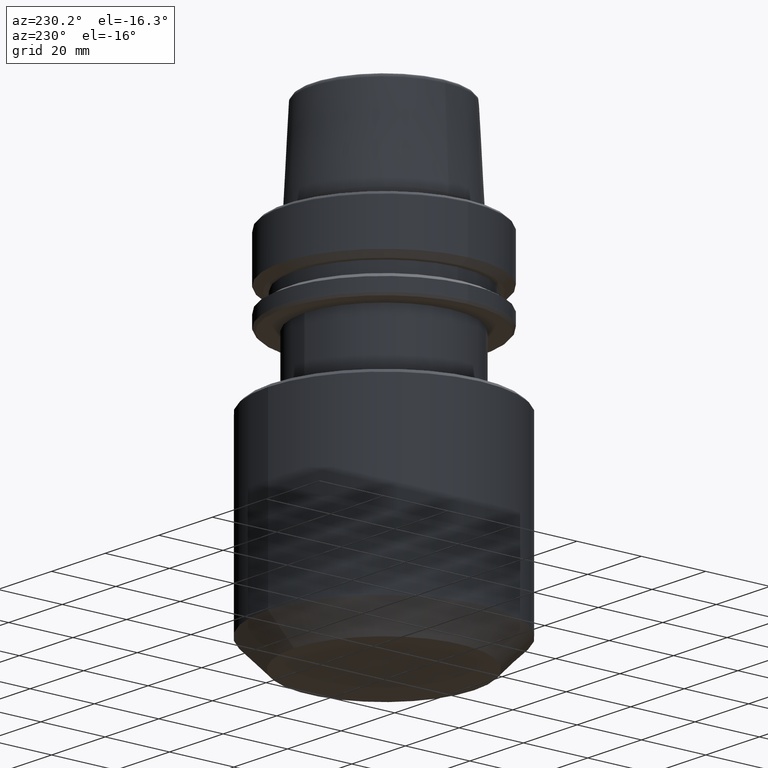
[diagram: clean part render]
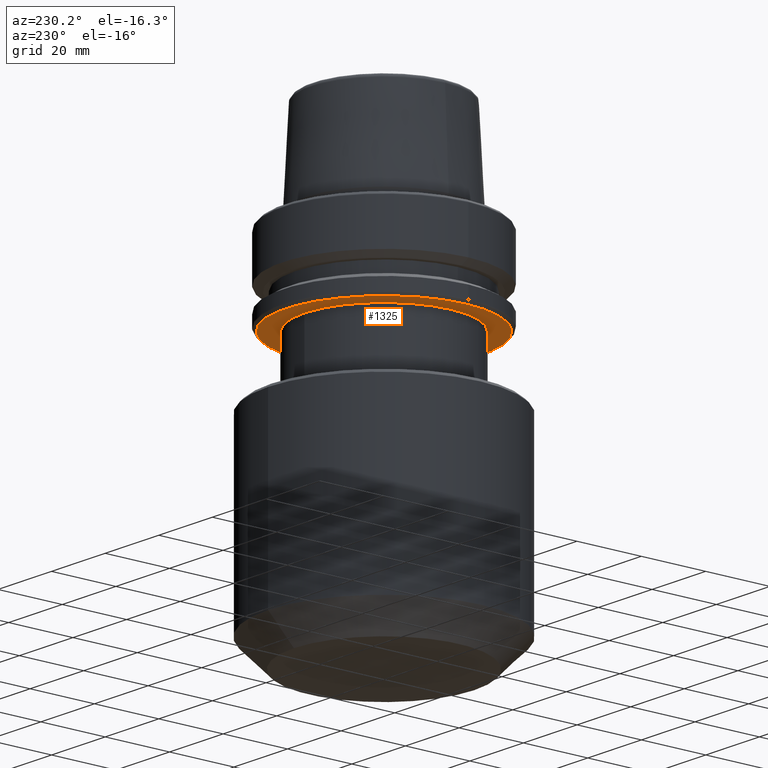
[diagram: same view with one face highlighted and labeled with its STEP entity id]
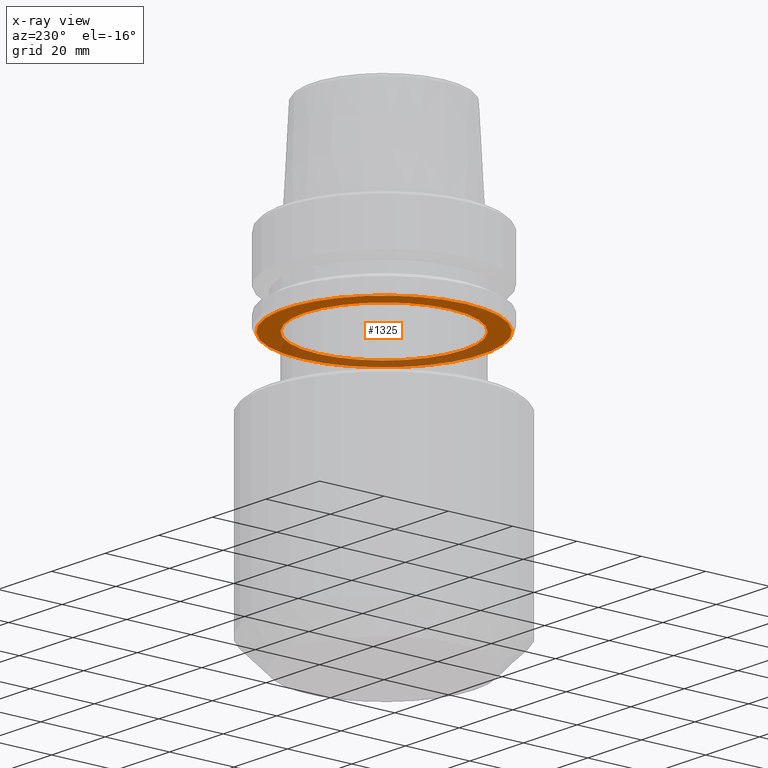
[diagram: x-ray of the same camera — body ghosted, the highlighted face saturated]
A machine part, auxiliary view. The second image highlights one B-rep face of the part: STEP entity #1325.
The next image is the same camera in x-ray: the body ghosted, the highlighted face saturated — about 34% of this face is hidden behind the body in this view.
In plain terms, the highlighted planar face has unit normal (0, -0, 1).
Its self-contained STEP definition (entity closure, byte-faithful):
#26 = ORIENTED_EDGE ( 'NONE', *, *, #272, .F. ) ;
#109 = CARTESIAN_POINT ( 'NONE',  ( 0.0000000000000000000, 30.53431457505076100, -26.00000000000001100 ) ) ;
#114 = CIRCLE ( 'NONE', #732, 30.53431457505076100 ) ;
#134 = DIRECTION ( 'NONE',  ( -0.0000000000000000000, 1.457912856127802100E-017, -1.000000000000000000 ) ) ;
#189 = DIRECTION ( 'NONE',  ( -0.0000000000000000000, -0.0000000000000000000, 1.000000000000000000 ) ) ;
#198 = CIRCLE ( 'NONE', #525, 24.75000000000000000 ) ;
#272 = EDGE_CURVE ( 'NONE', #410, #916, #198, .T. ) ;
#294 = DIRECTION ( 'NONE',  ( 0.0000000000000000000, 1.000000000000000000, 0.0000000000000000000 ) ) ;
#316 = AXIS2_PLACEMENT_3D ( 'NONE', #109, #942, #731 ) ;
#356 = FACE_BOUND ( 'NONE', #619, .T. ) ;
#357 = DIRECTION ( 'NONE',  ( 0.0000000000000000000, 1.000000000000000000, 0.0000000000000000000 ) ) ;
#410 = VERTEX_POINT ( 'NONE', #1367 ) ;
#412 = DIRECTION ( 'NONE',  ( 1.000000000000000000, 0.0000000000000000000, 0.0000000000000000000 ) ) ;
#421 = DIRECTION ( 'NONE',  ( -0.0000000000000000000, 1.457912856127802100E-017, -1.000000000000000000 ) ) ;
#461 = EDGE_LOOP ( 'NONE', ( #1070, #1226 ) ) ;
#502 = CARTESIAN_POINT ( 'NONE',  ( 0.0000000000000000000, 0.0000000000000000000, -26.00000000000001100 ) ) ;
#515 = EDGE_CURVE ( 'NONE', #1307, #1104, #837, .T. ) ;
#525 = AXIS2_PLACEMENT_3D ( 'NONE', #1053, #421, #294 ) ;
#619 = EDGE_LOOP ( 'NONE', ( #1382, #26 ) ) ;
#653 = FACE_OUTER_BOUND ( 'NONE', #461, .T. ) ;
#731 = DIRECTION ( 'NONE',  ( 1.000000000000000000, 0.0000000000000000000, 0.0000000000000000000 ) ) ;
#732 = AXIS2_PLACEMENT_3D ( 'NONE', #1259, #189, #412 ) ;
#837 = CIRCLE ( 'NONE', #1200, 30.53431457505076100 ) ;
#856 = PLANE ( 'NONE',  #316 ) ;
#893 = EDGE_CURVE ( 'NONE', #1104, #1307, #114, .T. ) ;
#916 = VERTEX_POINT ( 'NONE', #1167 ) ;
#942 = DIRECTION ( 'NONE',  ( 0.0000000000000000000, -0.0000000000000000000, 1.000000000000000000 ) ) ;
#958 = CARTESIAN_POINT ( 'NONE',  ( 30.53431457505076100, 0.0000000000000000000, -26.00000000000001100 ) ) ;
#995 = EDGE_CURVE ( 'NONE', #916, #410, #1068, .T. ) ;
#1015 = DIRECTION ( 'NONE',  ( 1.000000000000000000, 0.0000000000000000000, 0.0000000000000000000 ) ) ;
#1050 = CARTESIAN_POINT ( 'NONE',  ( -30.53431457505076100, 3.756694181974138600E-015, -26.00000000000001100 ) ) ;
#1053 = CARTESIAN_POINT ( 'NONE',  ( 0.0000000000000000000, 0.0000000000000000000, -26.00000000000001100 ) ) ;
#1068 = CIRCLE ( 'NONE', #1221, 24.75000000000000000 ) ;
#1070 = ORIENTED_EDGE ( 'NONE', *, *, #893, .F. ) ;
#1104 = VERTEX_POINT ( 'NONE', #958 ) ;
#1167 = CARTESIAN_POINT ( 'NONE',  ( 0.0000000000000000000, 24.75000000000000000, -26.00000000000001100 ) ) ;
#1200 = AXIS2_PLACEMENT_3D ( 'NONE', #502, #1347, #1015 ) ;
#1221 = AXIS2_PLACEMENT_3D ( 'NONE', #1305, #134, #357 ) ;
#1226 = ORIENTED_EDGE ( 'NONE', *, *, #515, .F. ) ;
#1259 = CARTESIAN_POINT ( 'NONE',  ( 0.0000000000000000000, 0.0000000000000000000, -26.00000000000001100 ) ) ;
#1305 = CARTESIAN_POINT ( 'NONE',  ( 0.0000000000000000000, 0.0000000000000000000, -26.00000000000001100 ) ) ;
#1307 = VERTEX_POINT ( 'NONE', #1050 ) ;
#1325 = ADVANCED_FACE ( 'NONE', ( #356, #653 ), #856, .F. ) ;
#1347 = DIRECTION ( 'NONE',  ( -0.0000000000000000000, -0.0000000000000000000, 1.000000000000000000 ) ) ;
#1367 = CARTESIAN_POINT ( 'NONE',  ( 3.031000827889699300E-015, -24.75000000000000000, -26.00000000000001100 ) ) ;
#1382 = ORIENTED_EDGE ( 'NONE', *, *, #995, .F. ) ;